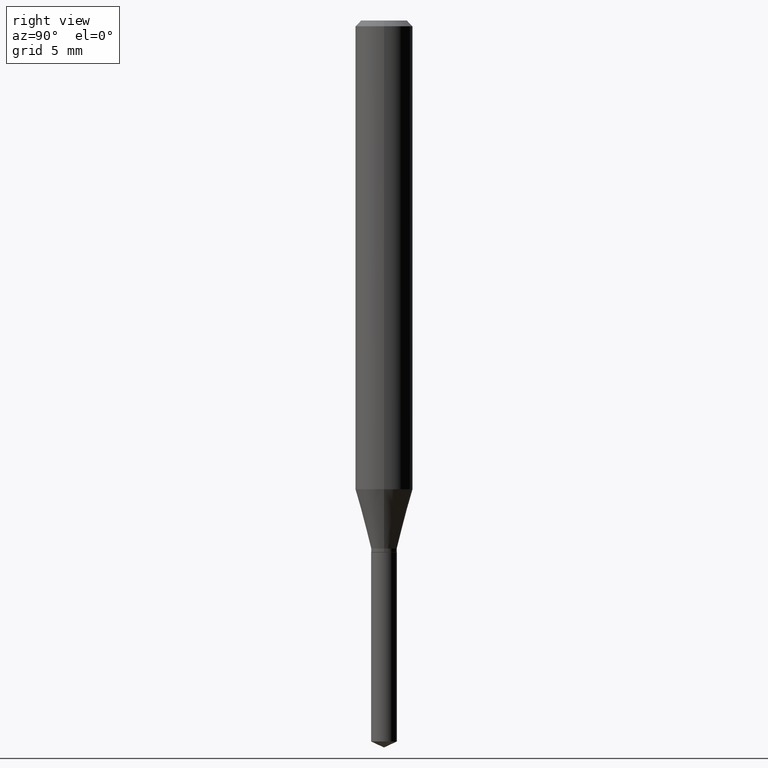
[diagram: clean part render]
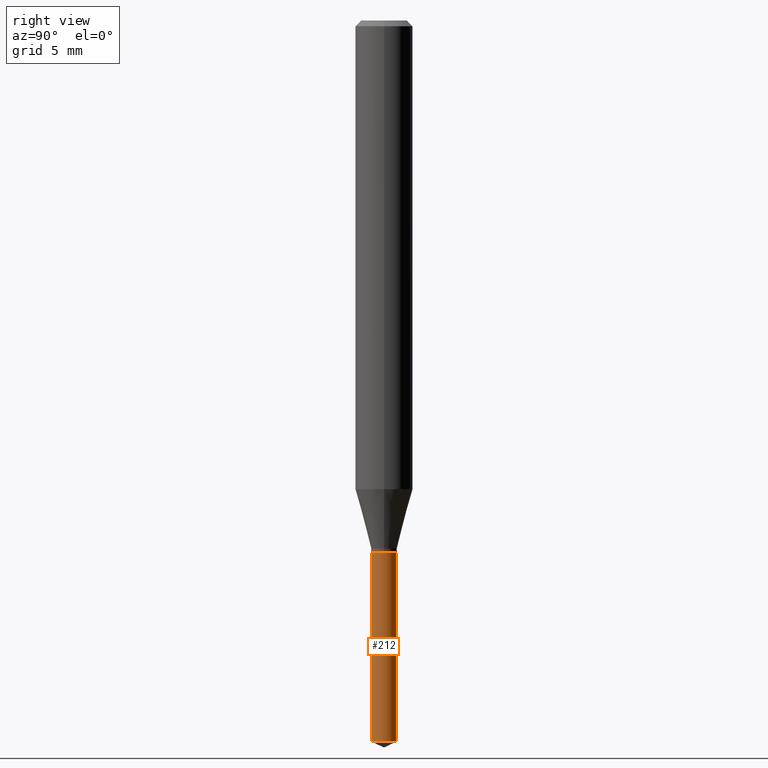
[diagram: same view with one face highlighted and labeled with its STEP entity id]
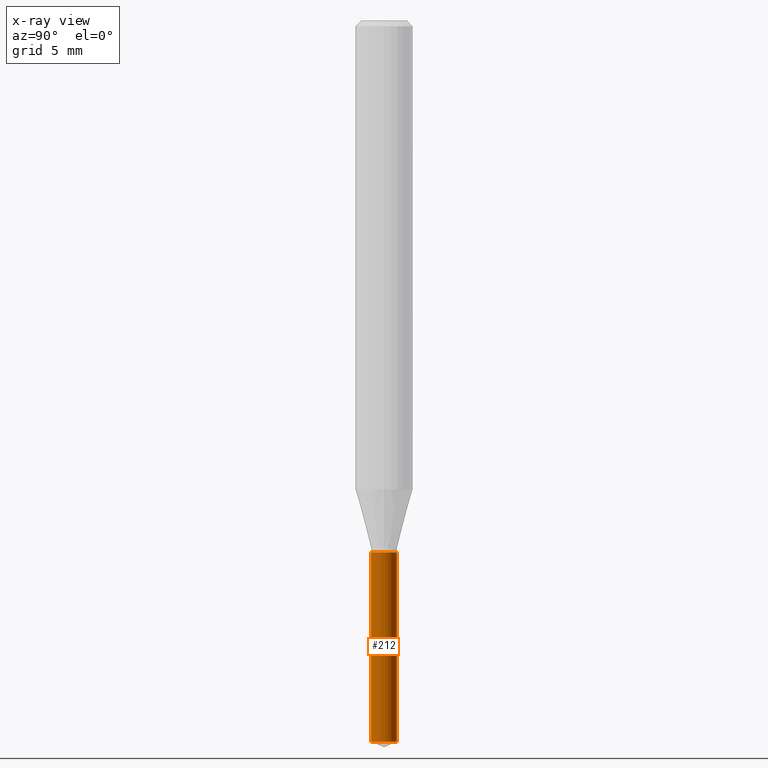
[diagram: x-ray of the same camera — body ghosted, the highlighted face saturated]
A machine part, right view. The second image highlights one B-rep face of the part: STEP entity #212.
The next image is the same camera in x-ray: the body ghosted, the highlighted face saturated — about 0% of this face is hidden behind the body in this view.
In plain terms, the highlighted cylindrical surface (edge-blend (fillet) strip) has radius 0.6706 mm, axis along (-0, 0, 1).
Its self-contained STEP definition (entity closure, byte-faithful):
#18 = CARTESIAN_POINT ( 'NONE',  ( 2.676565608369631794E-29, -3.821426325363822773E-15, -1.094499999999999806 ) ) ;
#33 = ORIENTED_EDGE ( 'NONE', *, *, #290, .F. ) ;
#36 = ORIENTED_EDGE ( 'NONE', *, *, #173, .F. ) ;
#47 = ORIENTED_EDGE ( 'NONE', *, *, #298, .T. ) ;
#51 = VECTOR ( 'NONE', #488, 39.37007874015748143 ) ;
#81 = LINE ( 'NONE', #147, #192 ) ;
#85 = DIRECTION ( 'NONE',  ( -6.982962677686265133E-15, -1.000000000000000000, 5.173954533455043885E-15 ) ) ;
#89 = DIRECTION ( 'NONE',  ( -2.445470214571802116E-29, 3.491479321953280158E-15, 1.000000000000000000 ) ) ;
#90 = CARTESIAN_POINT ( 'NONE',  ( 3.628561431236165561E-29, -5.180622487442780866E-15, -1.483789477824708047 ) ) ;
#111 = CIRCLE ( 'NONE', #376, 0.02639999999999999986 ) ;
#122 = DIRECTION ( 'NONE',  ( -6.982962677686265133E-15, -1.000000000000000000, 0.000000000000000000 ) ) ;
#124 = CARTESIAN_POINT ( 'NONE',  ( 1.875832822406931707E-16, 0.02639999999999617999, -1.094500000000000028 ) ) ;
#126 = VERTEX_POINT ( 'NONE', #329 ) ;
#133 = VERTEX_POINT ( 'NONE', #251 ) ;
#140 = VERTEX_POINT ( 'NONE', #369 ) ;
#147 = CARTESIAN_POINT ( 'NONE',  ( -1.843502146908906609E-16, -0.02640000000000381972, -1.094499999999999806 ) ) ;
#158 = CARTESIAN_POINT ( 'NONE',  ( 1.875832822407027356E-16, 0.02639999999999481997, -1.483789477824708047 ) ) ;
#159 = DIRECTION ( 'NONE',  ( -2.445470214571802116E-29, 3.491479321953280158E-15, 1.000000000000000000 ) ) ;
#166 = EDGE_LOOP ( 'NONE', ( #363, #47, #33, #36 ) ) ;
#173 = EDGE_CURVE ( 'NONE', #126, #140, #81, .T. ) ;
#192 = VECTOR ( 'NONE', #293, 39.37007874015748143 ) ;
#195 = CARTESIAN_POINT ( 'NONE',  ( 2.676565608369631794E-29, -3.821426325363822773E-15, -1.094499999999999806 ) ) ;
#212 = ADVANCED_FACE ( 'NONE', ( #301 ), #305, .T. ) ;
#217 = CIRCLE ( 'NONE', #295, 0.02639999999999999986 ) ;
#244 = VERTEX_POINT ( 'NONE', #158 ) ;
#251 = CARTESIAN_POINT ( 'NONE',  ( 1.875832822407027356E-16, 0.02639999999999617999, -1.094500000000000028 ) ) ;
#268 = DIRECTION ( 'NONE',  ( -6.982962677686265133E-15, -1.000000000000000000, 5.173954533455043885E-15 ) ) ;
#290 = EDGE_CURVE ( 'NONE', #140, #133, #217, .T. ) ;
#293 = DIRECTION ( 'NONE',  ( -2.445470214571802396E-29, 3.491479321953280158E-15, 1.000000000000000000 ) ) ;
#295 = AXIS2_PLACEMENT_3D ( 'NONE', #18, #469, #268 ) ;
#298 = EDGE_CURVE ( 'NONE', #244, #133, #478, .T. ) ;
#301 = FACE_OUTER_BOUND ( 'NONE', #166, .T. ) ;
#303 = AXIS2_PLACEMENT_3D ( 'NONE', #195, #89, #85 ) ;
#305 = CYLINDRICAL_SURFACE ( 'NONE', #303, 0.02639999999999999986 ) ;
#329 = CARTESIAN_POINT ( 'NONE',  ( -1.843502146908811946E-16, -0.02640000000000519015, -1.483789477824708047 ) ) ;
#363 = ORIENTED_EDGE ( 'NONE', *, *, #465, .T. ) ;
#369 = CARTESIAN_POINT ( 'NONE',  ( -1.843502146908906609E-16, -0.02640000000000381972, -1.094499999999999806 ) ) ;
#376 = AXIS2_PLACEMENT_3D ( 'NONE', #90, #159, #122 ) ;
#465 = EDGE_CURVE ( 'NONE', #126, #244, #111, .T. ) ;
#469 = DIRECTION ( 'NONE',  ( -2.445470214571802116E-29, 3.491479321953280158E-15, 1.000000000000000000 ) ) ;
#478 = LINE ( 'NONE', #124, #51 ) ;
#488 = DIRECTION ( 'NONE',  ( -2.445470214571802396E-29, 3.491479321953280158E-15, 1.000000000000000000 ) ) ;